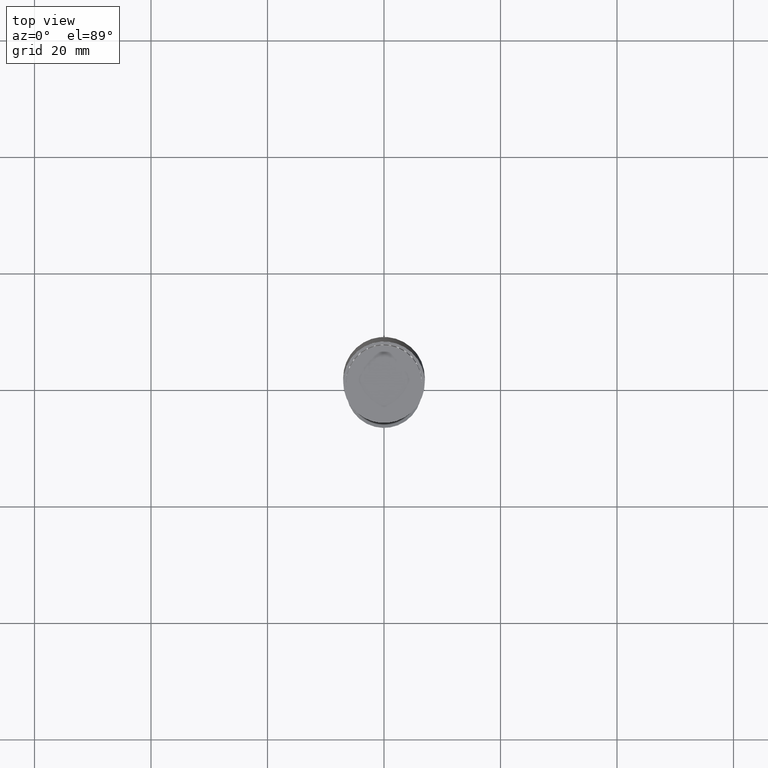
[diagram: clean part render]
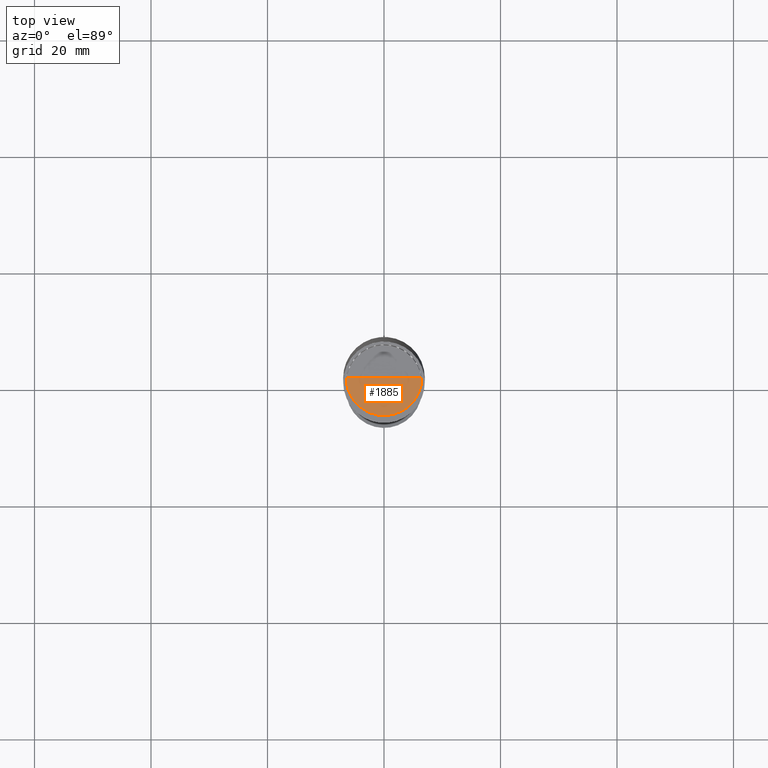
[diagram: same view with one face highlighted and labeled with its STEP entity id]
A machine part, top view. The second image highlights one B-rep face of the part: STEP entity #1885.
In plain terms, the highlighted face is a freeform B-spline surface patch.
Its self-contained STEP definition (entity closure, byte-faithful):
#1488=CARTESIAN_POINT('',(6.5,0.0,45.0));
#1492=CARTESIAN_POINT('',(-6.5,0.0,45.0));
#1493=CARTESIAN_POINT('',(0.0,0.0,45.0));
#1506=CARTESIAN_POINT('',(-6.5,-6.5,45.0));
#1507=CARTESIAN_POINT('',(0.0,-6.5,45.0));
#1508=CARTESIAN_POINT('',(6.5,-6.5,45.0));
#1870=(
BOUNDED_SURFACE()
B_SPLINE_SURFACE(1,2,(
(#1492,#1506,#1507,#1508,#1488),
(#1493,#1493,#1493,#1493,#1493)
), .UNSPECIFIED.,.F.,.F.,.F.)
B_SPLINE_SURFACE_WITH_KNOTS((2,2),(3,2,3),(
0.0,1.0),(
0.0,0.5,1.0), .UNSPECIFIED.)
GEOMETRIC_REPRESENTATION_ITEM()
RATIONAL_B_SPLINE_SURFACE(((1.0,0.707106781187,1.0,0.707106781187,1.0),
(1.0,0.707106781187,1.0,0.707106781187,1.0)
))
REPRESENTATION_ITEM('')
SURFACE()
);
#1871=(
BOUNDED_CURVE()
B_SPLINE_CURVE(2,(#1488,#1508,#1507,#1506,#1492),.UNSPECIFIED.,.F.,.F.)
B_SPLINE_CURVE_WITH_KNOTS((3,2,3),
(0.0,0.5,1.0),.UNSPECIFIED.)
CURVE()
GEOMETRIC_REPRESENTATION_ITEM()
RATIONAL_B_SPLINE_CURVE((1.0,0.707106781187,1.0,0.707106781187,1.0))
REPRESENTATION_ITEM('')
);
#1872=(
BOUNDED_CURVE()
B_SPLINE_CURVE(1,(#1492,#1493),.UNSPECIFIED.,.F.,.F.)
B_SPLINE_CURVE_WITH_KNOTS((2,2),
(0.0,1.0),.UNSPECIFIED.)
CURVE()
GEOMETRIC_REPRESENTATION_ITEM()
RATIONAL_B_SPLINE_CURVE((1.0,1.0))
REPRESENTATION_ITEM('')
);
#1873=(
BOUNDED_CURVE()
B_SPLINE_CURVE(1,(#1493,#1488),.UNSPECIFIED.,.F.,.F.)
B_SPLINE_CURVE_WITH_KNOTS((2,2),
(0.0,1.0),.UNSPECIFIED.)
CURVE()
GEOMETRIC_REPRESENTATION_ITEM()
RATIONAL_B_SPLINE_CURVE((1.0,1.0))
REPRESENTATION_ITEM('')
);
#1874=VERTEX_POINT('',#1488);
#1875=VERTEX_POINT('',#1492);
#1876=VERTEX_POINT('',#1493);
#1877=EDGE_CURVE('',#1874,#1875,#1871,.T.);
#1878=EDGE_CURVE('',#1875,#1876,#1872,.T.);
#1879=EDGE_CURVE('',#1876,#1874,#1873,.T.);
#1880=ORIENTED_EDGE('',*,*,#1877,.T.);
#1881=ORIENTED_EDGE('',*,*,#1878,.T.);
#1882=ORIENTED_EDGE('',*,*,#1879,.T.);
#1883=EDGE_LOOP('',(#1880,#1881,#1882));
#1884=FACE_OUTER_BOUND('',#1883,.T.);
#1885=ADVANCED_FACE('',(#1884),#1870,.T.);